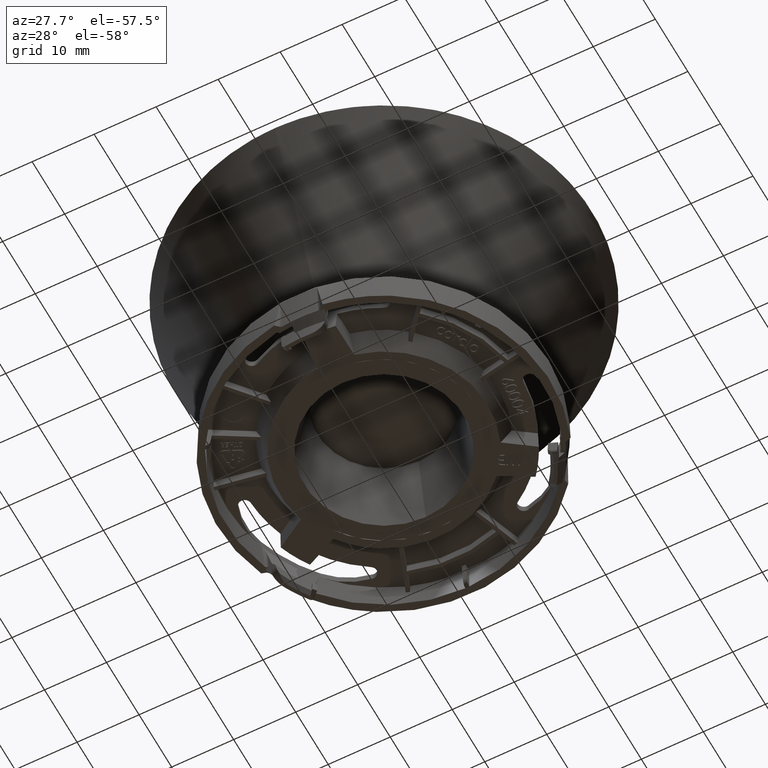
[diagram: clean part render]
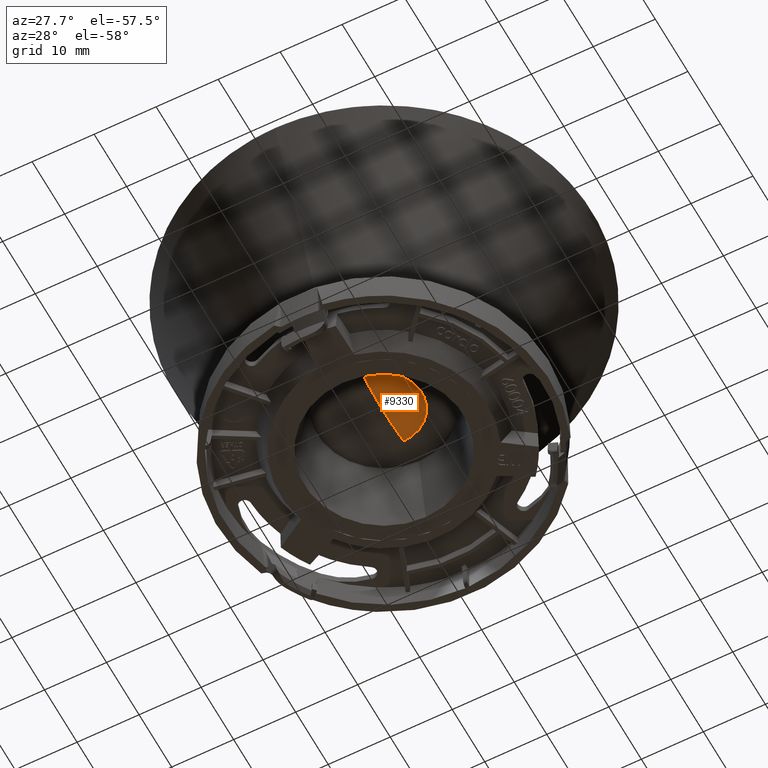
[diagram: same view with one face highlighted and labeled with its STEP entity id]
A machine part, auxiliary view. The second image highlights one B-rep face of the part: STEP entity #9330.
In plain terms, the highlighted toroidal blend (fillet) surface has major radius 0.3368 mm and minor (blend) radius 21.1944 mm.
Its self-contained STEP definition (entity closure, byte-faithful):
#817 = DIRECTION ( 'NONE',  ( -1.000000000000000000, 0.0000000000000000000, 7.021038414894075600E-017 ) ) ;
#1688 = VERTEX_POINT ( 'NONE', #15278 ) ;
#4969 = CIRCLE ( 'NONE', #19325, 6.090311252196961800 ) ;
#6942 = FACE_OUTER_BOUND ( 'NONE', #7509, .T. ) ;
#7509 = EDGE_LOOP ( 'NONE', ( #19242, #27254, #28478 ) ) ;
#7619 = DIRECTION ( 'NONE',  ( -7.021038414894075600E-017, -0.0000000000000000000, -1.000000000000000000 ) ) ;
#7871 = EDGE_CURVE ( 'NONE', #1688, #13563, #10188, .T. ) ;
#8155 = CARTESIAN_POINT ( 'NONE',  ( -0.3368339347718484200, 0.0000000000000000000, 31.29848796373983100 ) ) ;
#9330 = ADVANCED_FACE ( 'NONE', ( #6942 ), #24970, .T. ) ;
#10188 = CIRCLE ( 'NONE', #11826, 21.19440721324500400 ) ;
#10385 = CARTESIAN_POINT ( 'NONE',  ( 0.3368339347718528600, 4.125026000625552000E-017, 31.29848796373983100 ) ) ;
#10415 = DIRECTION ( 'NONE',  ( 0.0000000000000000000, 0.0000000000000000000, -1.000000000000000000 ) ) ;
#11826 = AXIS2_PLACEMENT_3D ( 'NONE', #8155, #23970, #10415 ) ;
#12670 = DIRECTION ( 'NONE',  ( -1.000000000000000000, -1.224646799147353200E-016, 0.0000000000000000000 ) ) ;
#13563 = VERTEX_POINT ( 'NONE', #20170 ) ;
#14925 = EDGE_CURVE ( 'NONE', #24235, #1688, #4969, .T. ) ;
#15278 = CARTESIAN_POINT ( 'NONE',  ( -6.090311252196960900, 9.957953974104486800E-016, 10.89994890137738200 ) ) ;
#18686 = DIRECTION ( 'NONE',  ( -7.021038414894075600E-017, -0.0000000000000000000, -1.000000000000000000 ) ) ;
#19242 = ORIENTED_EDGE ( 'NONE', *, *, #22771, .F. ) ;
#19325 = AXIS2_PLACEMENT_3D ( 'NONE', #21152, #7619, #23413 ) ;
#20170 = CARTESIAN_POINT ( 'NONE',  ( -8.456776945386934600E-015, 0.0000000000000000000, 10.10675750062667600 ) ) ;
#20202 = AXIS2_PLACEMENT_3D ( 'NONE', #27635, #18686, #817 ) ;
#21152 = CARTESIAN_POINT ( 'NONE',  ( 7.923946538816684700E-016, 0.0000000000000000000, 10.89994890137738200 ) ) ;
#21224 = CARTESIAN_POINT ( 'NONE',  ( 6.090311252196962700, 0.0000000000000000000, 10.89994890137738200 ) ) ;
#21738 = AXIS2_PLACEMENT_3D ( 'NONE', #10385, #26198, #12670 ) ;
#22771 = EDGE_CURVE ( 'NONE', #24235, #13563, #26240, .T. ) ;
#23413 = DIRECTION ( 'NONE',  ( -1.000000000000000000, 0.0000000000000000000, 0.0000000000000000000 ) ) ;
#23970 = DIRECTION ( 'NONE',  ( 0.0000000000000000000, -1.000000000000000000, 0.0000000000000000000 ) ) ;
#24235 = VERTEX_POINT ( 'NONE', #21224 ) ;
#24970 = TOROIDAL_SURFACE ( 'NONE', #20202, 0.3368339347718506400, 21.19440721324500400 ) ;
#26198 = DIRECTION ( 'NONE',  ( -1.224646799147353200E-016, 1.000000000000000000, 8.598292221490636600E-033 ) ) ;
#26240 = CIRCLE ( 'NONE', #21738, 21.19440721324500400 ) ;
#27254 = ORIENTED_EDGE ( 'NONE', *, *, #14925, .T. ) ;
#27635 = CARTESIAN_POINT ( 'NONE',  ( 2.222614453595284100E-015, 0.0000000000000000000, 31.29848796373983100 ) ) ;
#28478 = ORIENTED_EDGE ( 'NONE', *, *, #7871, .T. ) ;